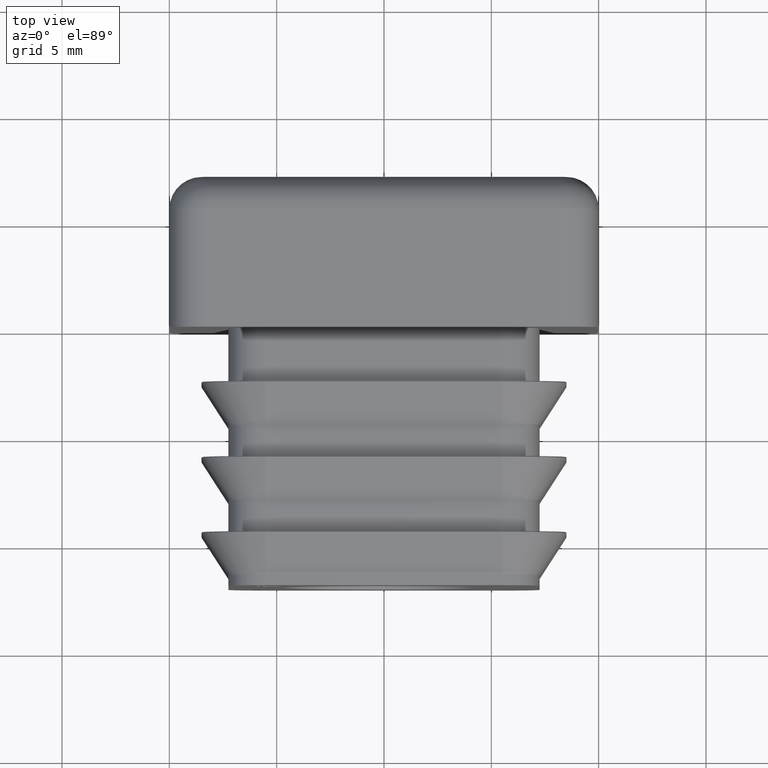
[diagram: clean part render]
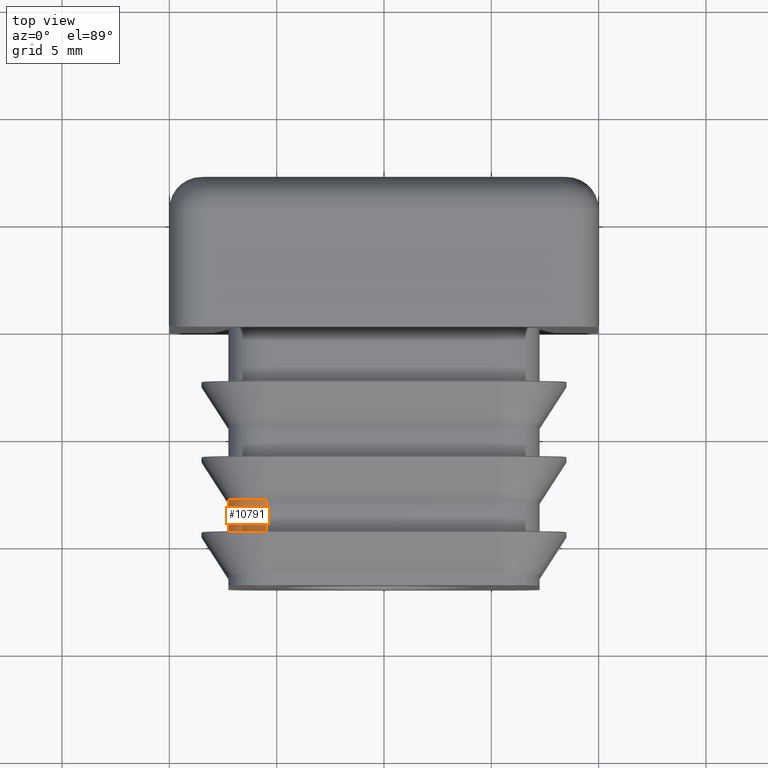
[diagram: same view with one face highlighted and labeled with its STEP entity id]
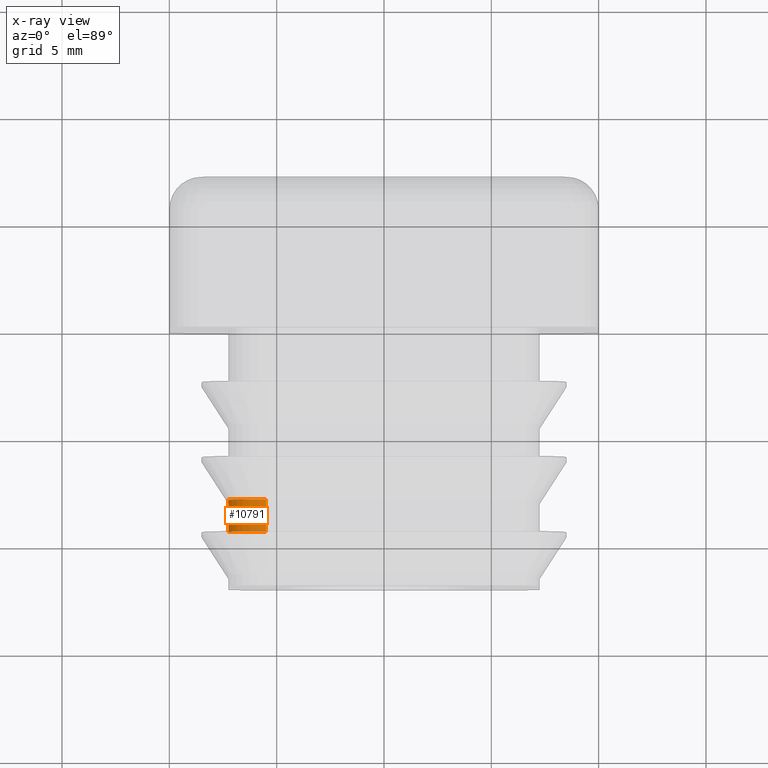
[diagram: x-ray of the same camera — body ghosted, the highlighted face saturated]
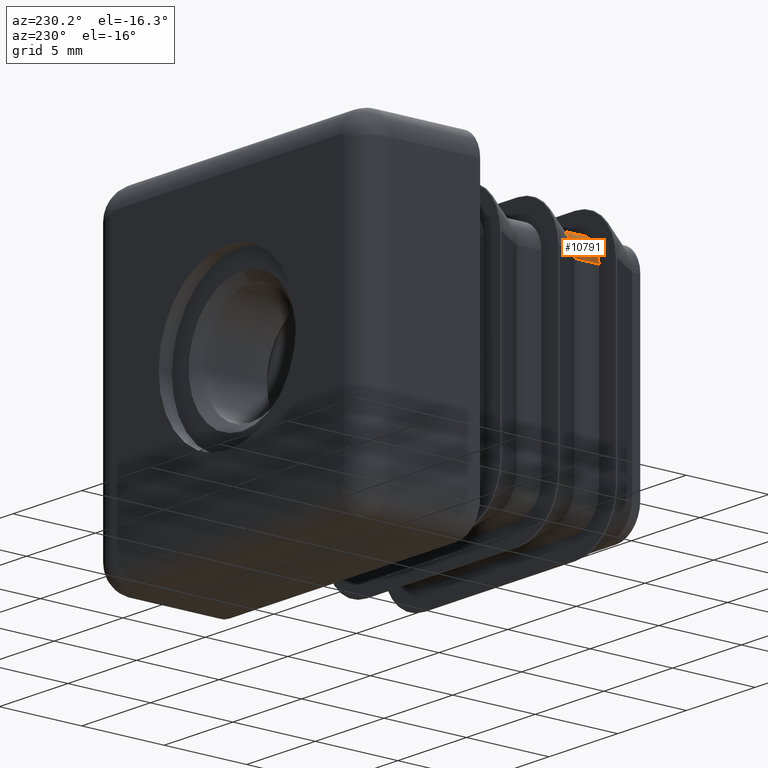
[diagram: same view with one face highlighted and labeled with its STEP entity id]
A machine part, top view. The second image highlights one B-rep face of the part: STEP entity #10791.
The next image is the same camera in x-ray: the body ghosted, the highlighted face saturated — about 0% of this face is hidden behind the body in this view.
A second angle (auxiliary view) of the same face is appended — the face is thin or edge-on in the first view.
In plain terms, the highlighted cylindrical surface (partial cylindrical patch) has radius 1.75 mm, axis along (-0, 1, 0).
Its self-contained STEP definition (entity closure, byte-faithful):
#505 = CARTESIAN_POINT ( 'NONE',  ( -7.249999999999996447, -12.00000000000000000, 5.499999999999994671 ) ) ;
#860 = LINE ( 'NONE', #505, #4778 ) ;
#1011 = AXIS2_PLACEMENT_3D ( 'NONE', #18811, #19016, #6213 ) ;
#1529 = EDGE_CURVE ( 'NONE', #6247, #19213, #15990, .T. ) ;
#1596 = VECTOR ( 'NONE', #17971, 1000.000000000000000 ) ;
#1920 = CARTESIAN_POINT ( 'NONE',  ( -5.499999999999996447, -8.000000000000051514, 7.249999999999994671 ) ) ;
#1923 = DIRECTION ( 'NONE',  ( -0.000000000000000000, 1.000000000000000000, 0.000000000000000000 ) ) ;
#2217 = CARTESIAN_POINT ( 'NONE',  ( -7.249999999999996447, -9.499999999999998224, 5.499999999999994671 ) ) ;
#3043 = DIRECTION ( 'NONE',  ( -0.000000000000000000, 1.000000000000000000, 0.000000000000000000 ) ) ;
#3341 = DIRECTION ( 'NONE',  ( 0.000000000000000000, 0.000000000000000000, 1.000000000000000000 ) ) ;
#4043 = CARTESIAN_POINT ( 'NONE',  ( -5.499999999999996447, -12.00000000000000000, 7.249999999999994671 ) ) ;
#4347 = ORIENTED_EDGE ( 'NONE', *, *, #1529, .F. ) ;
#4778 = VECTOR ( 'NONE', #1923, 1000.000000000000000 ) ;
#5908 = AXIS2_PLACEMENT_3D ( 'NONE', #10737, #3043, #6166 ) ;
#6166 = DIRECTION ( 'NONE',  ( 0.000000000000000000, 0.000000000000000000, 1.000000000000000000 ) ) ;
#6213 = DIRECTION ( 'NONE',  ( 0.000000000000000000, 0.000000000000000000, 1.000000000000000000 ) ) ;
#6214 = EDGE_LOOP ( 'NONE', ( #4347, #7685, #13408, #7015 ) ) ;
#6247 = VERTEX_POINT ( 'NONE', #20130 ) ;
#6407 = EDGE_CURVE ( 'NONE', #17964, #6247, #18105, .T. ) ;
#6931 = EDGE_CURVE ( 'NONE', #19213, #12747, #860, .T. ) ;
#7015 = ORIENTED_EDGE ( 'NONE', *, *, #6931, .F. ) ;
#7685 = ORIENTED_EDGE ( 'NONE', *, *, #6407, .F. ) ;
#8451 = AXIS2_PLACEMENT_3D ( 'NONE', #9598, #12758, #3341 ) ;
#8550 = CARTESIAN_POINT ( 'NONE',  ( -7.249999999999996447, -8.000000000000049738, 5.499999999999994671 ) ) ;
#9598 = CARTESIAN_POINT ( 'NONE',  ( -5.499999999999998224, -9.500000000000000000, 5.499999999999994671 ) ) ;
#10211 = CIRCLE ( 'NONE', #1011, 1.750000000000031974 ) ;
#10737 = CARTESIAN_POINT ( 'NONE',  ( -5.499999999999996447, -12.00000000000000000, 5.499999999999994671 ) ) ;
#10791 = ADVANCED_FACE ( 'NONE', ( #12945 ), #19124, .T. ) ;
#11279 = EDGE_CURVE ( 'NONE', #17964, #12747, #10211, .T. ) ;
#12747 = VERTEX_POINT ( 'NONE', #8550 ) ;
#12758 = DIRECTION ( 'NONE',  ( -0.000000000000000000, -1.000000000000000000, -0.000000000000000000 ) ) ;
#12945 = FACE_OUTER_BOUND ( 'NONE', #6214, .T. ) ;
#13408 = ORIENTED_EDGE ( 'NONE', *, *, #11279, .T. ) ;
#15990 = CIRCLE ( 'NONE', #8451, 1.750000000000068390 ) ;
#17964 = VERTEX_POINT ( 'NONE', #1920 ) ;
#17971 = DIRECTION ( 'NONE',  ( -0.000000000000000000, -1.000000000000000000, -0.000000000000000000 ) ) ;
#18105 = LINE ( 'NONE', #4043, #1596 ) ;
#18811 = CARTESIAN_POINT ( 'NONE',  ( -5.499999999999998224, -8.000000000000000000, 5.499999999999994671 ) ) ;
#19016 = DIRECTION ( 'NONE',  ( -0.000000000000000000, -1.000000000000000000, -0.000000000000000000 ) ) ;
#19124 = CYLINDRICAL_SURFACE ( 'NONE', #5908, 1.749999999999999778 ) ;
#19213 = VERTEX_POINT ( 'NONE', #2217 ) ;
#20130 = CARTESIAN_POINT ( 'NONE',  ( -5.499999999999996447, -9.500000000000000000, 7.249999999999994671 ) ) ;